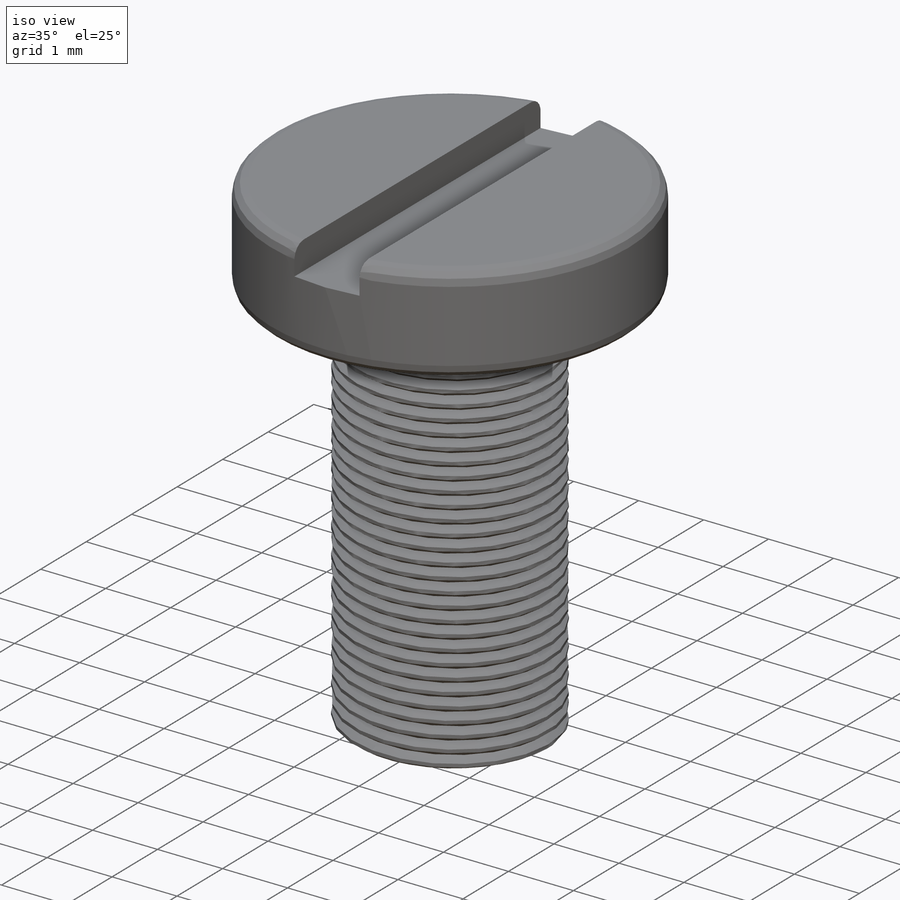
[diagram: iso view]
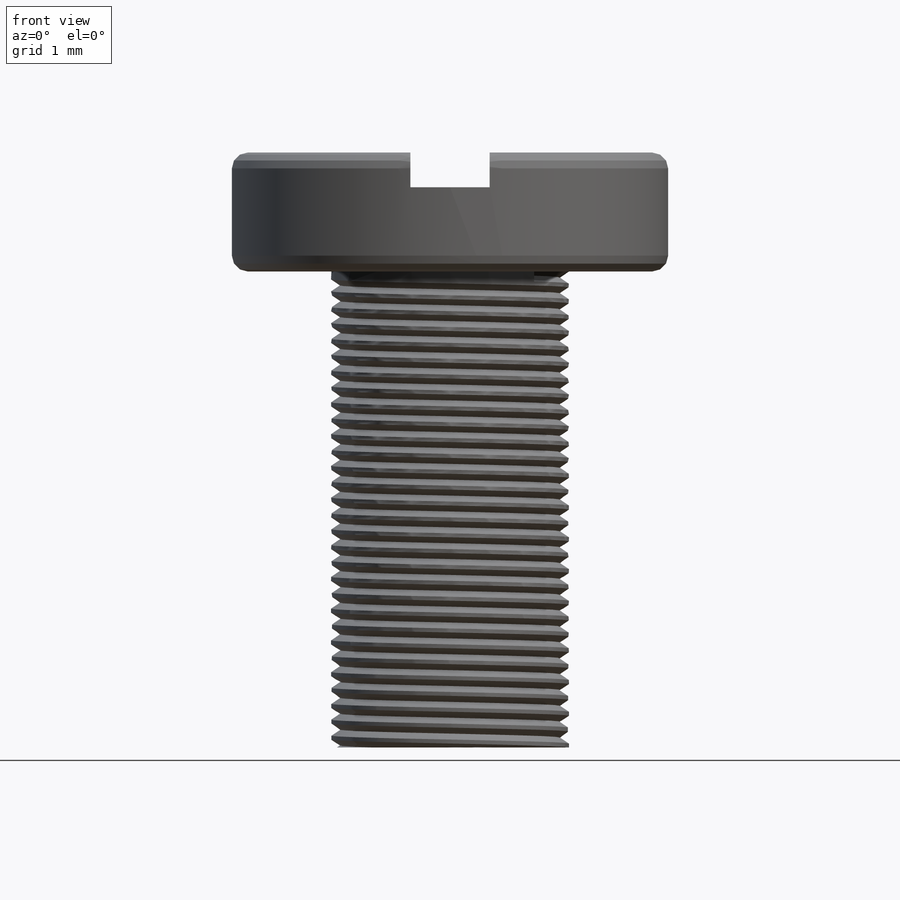
[diagram: front view]
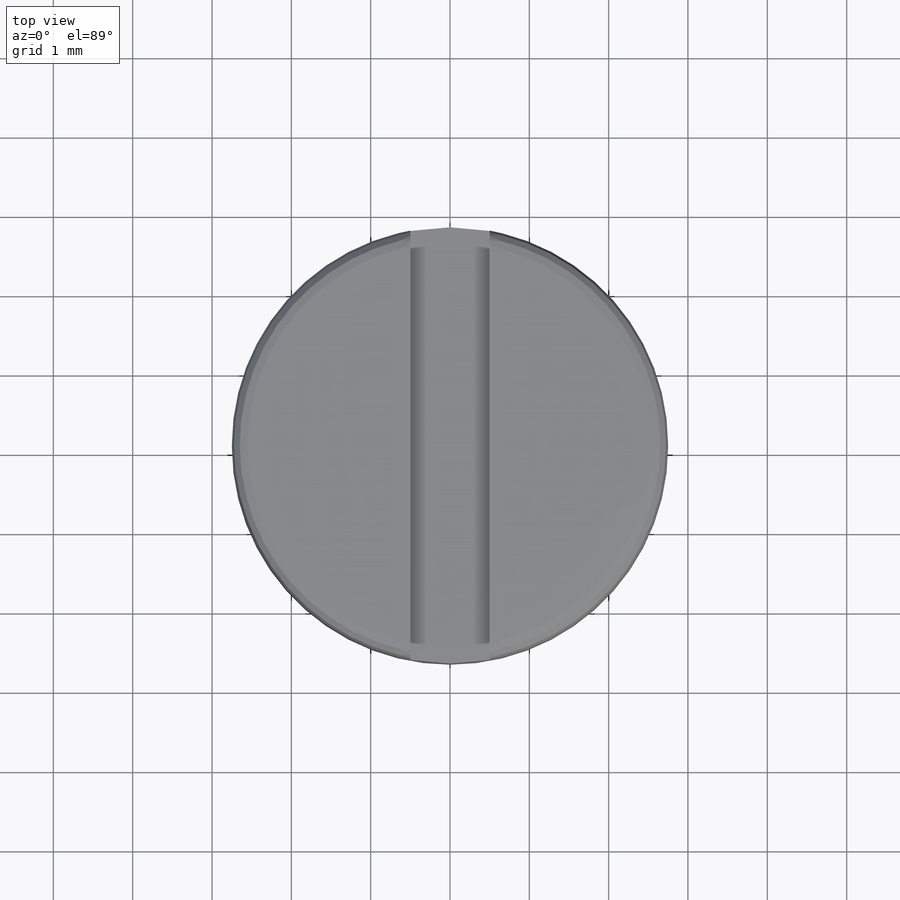
[diagram: top view]
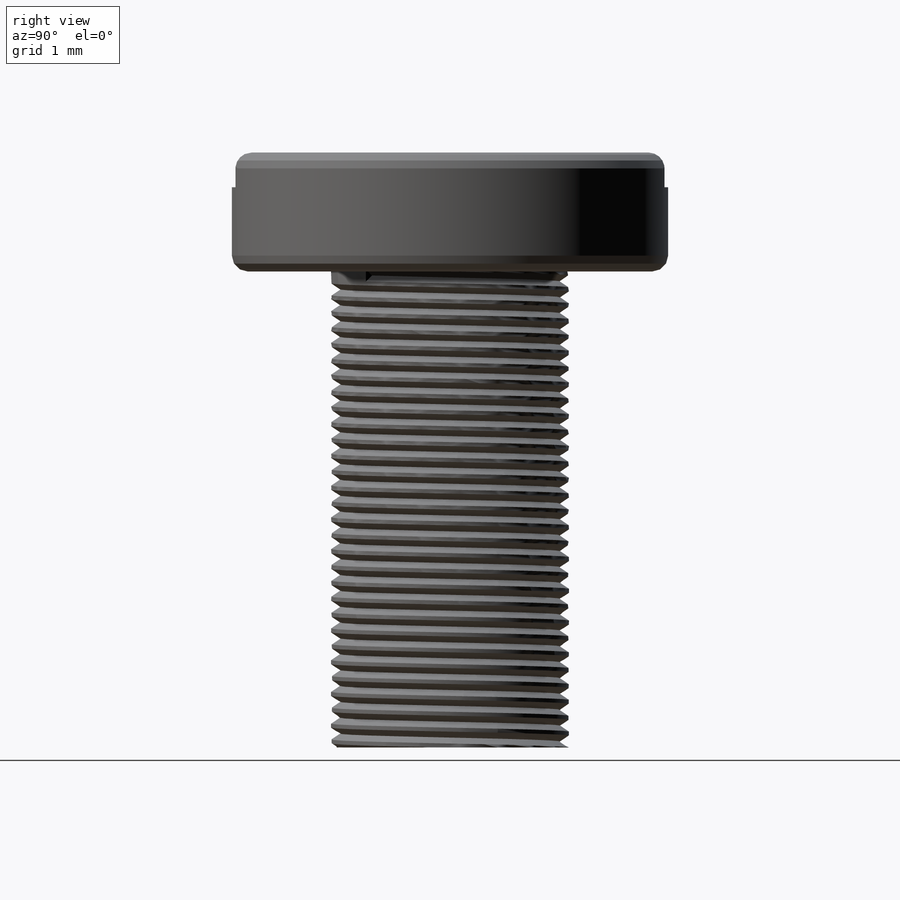
[diagram: right view]
SOLIDWORKS PART (.sldprt)
format: sldprt  version: not decoded by parser v0  size: 598,528 bytes
history: native  units: mm
features: sketch x5, extrude x2, material x1, fillet x1, cut_extrude x1, helix x1, sweep x1 (+13 scaffold rows collapsed)
feature tree (25):
  scaffold x13  (default folders/planes/origin — collapsed)
  material  "Material <not specified>"
  sketch  "Sketch1"  dims[D1=3.0mm D2=5.5mm]
  extrude  "Boss-Extrude1"  Depth=1.5mm
  extrude  "Boss-Extrude2"  [1 undecoded]
  sketch  "Sketch1<3>"  dims[D1=6.0mm]
  fillet  "Fillet1"  Radius=0.2mm
  sketch  "Sketch3"
  cut_extrude  "Cut-Extrude1"  Depth=1mm
  sketch  "Sketch4"
  helix  "Helix/Spiral1"  Pitch=6.1mm
  sketch  "Sketch5"  dims[D1=0.15mm]
  sweep  "Cut-Sweep1"
decode coverage: 7 of 11 modeling features carry decoded parameters
note: 1 parameter value undecoded
note: suppression state not decoded; provenance and decode notes live in map.json
